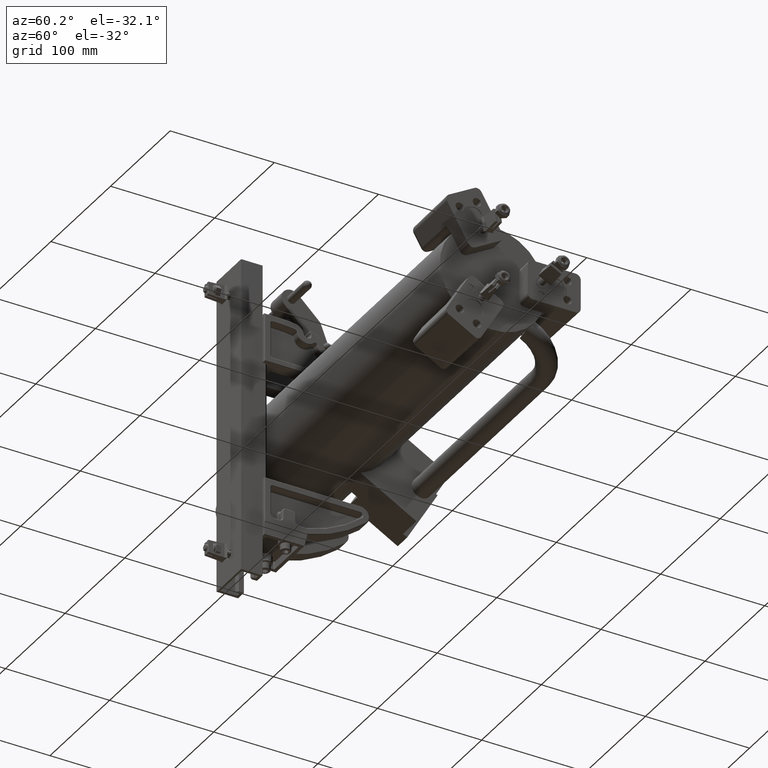
[diagram: clean part render]
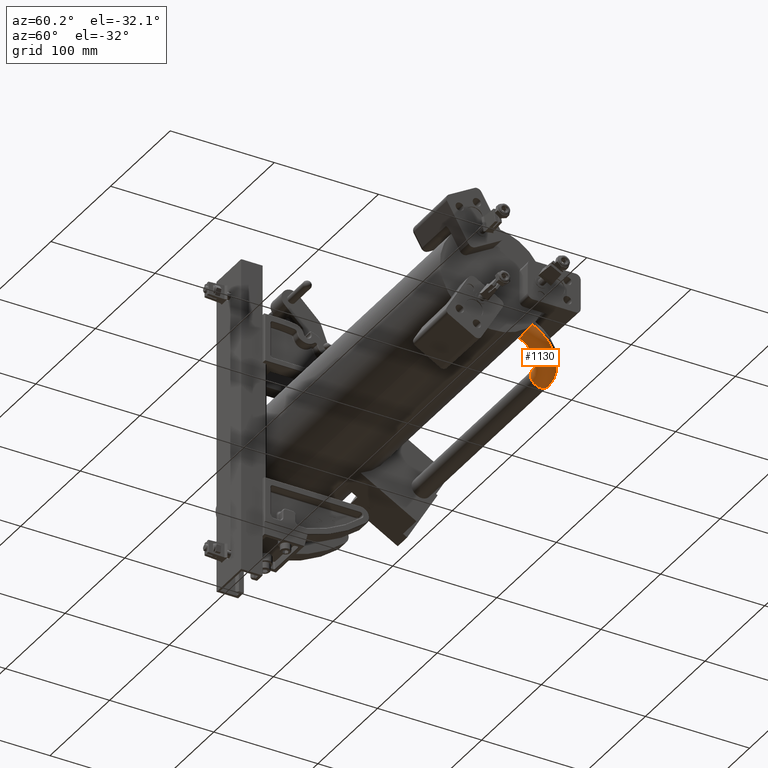
[diagram: same view with one face highlighted and labeled with its STEP entity id]
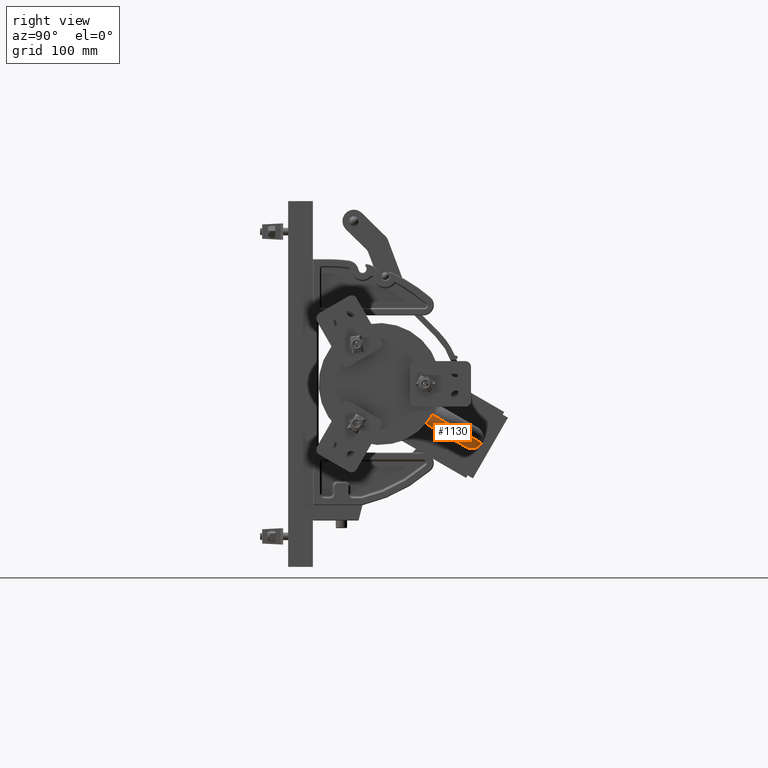
[diagram: same view with one face highlighted and labeled with its STEP entity id]
A machine part, auxiliary view. The second image highlights one B-rep face of the part: STEP entity #1130.
A second angle (right view) of the same face is appended — the face is thin or edge-on in the first view.
In plain terms, the highlighted toroidal blend (fillet) surface has major radius 34.4805 mm and minor (blend) radius 9.525 mm.
Its self-contained STEP definition (entity closure, byte-faithful):
#867 = DIRECTION ( 'NONE',  ( -0.9944751381215468600, 0.1049723756906080400, -5.551115123125777800E-017 ) ) ;
#1130 = ADVANCED_FACE ( 'NONE', ( #19698 ), #9911, .T. ) ;
#2361 = ORIENTED_EDGE ( 'NONE', *, *, #23046, .T. ) ;
#3145 = CARTESIAN_POINT ( 'NONE',  ( 3.500000000000004000, 2.149999999999999900, 1.092739197465705300E-015 ) ) ;
#3650 = CARTESIAN_POINT ( 'NONE',  ( 1.976859125544520500, 0.5807706630533413500, -0.3033611671776146300 ) ) ;
#3828 = CARTESIAN_POINT ( 'NONE',  ( 2.000000000000001300, 0.4233703350167918900, 1.893575060069270300E-015 ) ) ;
#4730 = CIRCLE ( 'NONE', #31177, 1.732500000000000200 ) ;
#5907 = EDGE_LOOP ( 'NONE', ( #2361, #11826, #8232, #29598, #47950 ) ) ;
#7114 = EDGE_CURVE ( 'NONE', #40670, #28609, #45233, .T. ) ;
#7324 = DIRECTION ( 'NONE',  ( 0.0000000000000000000, 0.0000000000000000000, -1.000000000000000000 ) ) ;
#7857 = CARTESIAN_POINT ( 'NONE',  ( 1.983714055282098000, 0.5248550148165260800, -0.2549593525981421200 ) ) ;
#8232 = ORIENTED_EDGE ( 'NONE', *, *, #7114, .F. ) ;
#9218 = CARTESIAN_POINT ( 'NONE',  ( 3.125000000000004000, 2.149999999999999900, 1.092739197465705300E-015 ) ) ;
#9911 = TOROIDAL_SURFACE ( 'NONE', #36905, 1.357499999999999700, 0.3750000000000002800 ) ;
#10402 = CIRCLE ( 'NONE', #49485, 0.3750000000000005600 ) ;
#10696 = VERTEX_POINT ( 'NONE', #9218 ) ;
#10991 = DIRECTION ( 'NONE',  ( 0.0000000000000000000, -5.440752092893936500E-033, -1.000000000000000000 ) ) ;
#11826 = ORIENTED_EDGE ( 'NONE', *, *, #43853, .T. ) ;
#12007 = CARTESIAN_POINT ( 'NONE',  ( 1.987796831126818200, 0.4963595337361464400, -0.2209440534489803500 ) ) ;
#13147 = EDGE_CURVE ( 'NONE', #10696, #49154, #53557, .T. ) ;
#16214 = CARTESIAN_POINT ( 'NONE',  ( 1.991588013561483600, 0.4720240362173502800, -0.1837083925191914400 ) ) ;
#19698 = FACE_OUTER_BOUND ( 'NONE', #5907, .T. ) ;
#20406 = CARTESIAN_POINT ( 'NONE',  ( 1.994844805433452400, 0.4524175500833991800, -0.1441735741196400500 ) ) ;
#23046 = EDGE_CURVE ( 'NONE', #10696, #42763, #28090, .T. ) ;
#23554 = CARTESIAN_POINT ( 'NONE',  ( 2.142500000000002300, 2.149999999999999900, -2.272605443984004900E-016 ) ) ;
#24414 = CARTESIAN_POINT ( 'NONE',  ( 1.976859125544520500, 0.5807706630533413500, -0.3033611671776146300 ) ) ;
#24595 = CARTESIAN_POINT ( 'NONE',  ( 1.997438204146040800, 0.4375288532371836000, -0.1022217074431470800 ) ) ;
#25822 = CARTESIAN_POINT ( 'NONE',  ( 2.000000000000000900, 0.8000000000000001600, -5.463695987328526400E-016 ) ) ;
#27750 = DIRECTION ( 'NONE',  ( 0.0000000000000000000, 1.000000000000000000, 0.0000000000000000000 ) ) ;
#28058 = CARTESIAN_POINT ( 'NONE',  ( 2.142500000000002300, 2.149999999999999900, -2.731847993664263200E-016 ) ) ;
#28090 = CIRCLE ( 'NONE', #52469, 0.3750000000000006700 ) ;
#28609 = VERTEX_POINT ( 'NONE', #39301 ) ;
#28757 = CARTESIAN_POINT ( 'NONE',  ( 2.000000000000000000, 0.4233703350167990500, -0.02966508011446778200 ) ) ;
#29598 = ORIENTED_EDGE ( 'NONE', *, *, #37510, .F. ) ;
#30008 = DIRECTION ( 'NONE',  ( 0.0000000000000000000, 0.0000000000000000000, -1.000000000000000000 ) ) ;
#31177 = AXIS2_PLACEMENT_3D ( 'NONE', #35965, #10991, #40168 ) ;
#32262 = DIRECTION ( 'NONE',  ( -1.000000000000000000, 0.0000000000000000000, 0.0000000000000000000 ) ) ;
#32275 = DIRECTION ( 'NONE',  ( -1.598521853841405800E-032, -1.000000000000000000, -3.659266894335748100E-033 ) ) ;
#32782 = CARTESIAN_POINT ( 'NONE',  ( 1.982324509216929700, 0.5351876198712671700, -0.2655005225003863600 ) ) ;
#35965 = CARTESIAN_POINT ( 'NONE',  ( 2.142500000000002300, 2.149999999999999900, -2.731847993664263200E-016 ) ) ;
#36905 = AXIS2_PLACEMENT_3D ( 'NONE', #28058, #40471, #32262 ) ;
#36974 = CARTESIAN_POINT ( 'NONE',  ( 1.986448050795349500, 0.5054545965020784700, -0.2327012378402112700 ) ) ;
#37510 = EDGE_CURVE ( 'NONE', #49154, #40670, #10402, .T. ) ;
#39301 = CARTESIAN_POINT ( 'NONE',  ( 2.000000000000001300, 0.4233703350167918900, 1.893575060069270300E-015 ) ) ;
#40168 = DIRECTION ( 'NONE',  ( 0.0000000000000000000, 1.000000000000000000, 0.0000000000000000000 ) ) ;
#40471 = DIRECTION ( 'NONE',  ( 0.0000000000000000000, -5.440752092893936500E-033, -1.000000000000000000 ) ) ;
#40670 = VERTEX_POINT ( 'NONE', #24414 ) ;
#41006 = CARTESIAN_POINT ( 'NONE',  ( 1.979556404976112300, 0.5571248383481395300, -0.2854074750390613300 ) ) ;
#41181 = CARTESIAN_POINT ( 'NONE',  ( 1.990373753086030200, 0.4796012782110551400, -0.1963793258429131500 ) ) ;
#42763 = VERTEX_POINT ( 'NONE', #51757 ) ;
#43853 = EDGE_CURVE ( 'NONE', #42763, #28609, #4730, .T. ) ;
#44638 = CARTESIAN_POINT ( 'NONE',  ( 2.039364640883978700, 1.172928176795580800, -2.272605443984005400E-016 ) ) ;
#45233 = B_SPLINE_CURVE_WITH_KNOTS ( 'NONE', 3,
 ( #3650, #53589, #41006, #32782, #7857, #36974, #12007, #41181, #16214, #45388, #20406, #49592, #24595, #53775, #28757, #3828 ),
 .UNSPECIFIED., .F., .F.,
 ( 4, 2, 2, 2, 2, 2, 2, 4 ),
 ( 0.05665030722868242400, 0.05777411461344594800, 0.05889792199820946500, 0.06002172938297298900, 0.06114553676773651400, 0.06226934415250003100, 0.06339315153726354800, 0.06564076630679059600 ),
 .UNSPECIFIED. ) ;
#45388 = CARTESIAN_POINT ( 'NONE',  ( 1.993823484524836200, 0.4584321436357563000, -0.1576055259215315700 ) ) ;
#47950 = ORIENTED_EDGE ( 'NONE', *, *, #13147, .F. ) ;
#49154 = VERTEX_POINT ( 'NONE', #44638 ) ;
#49485 = AXIS2_PLACEMENT_3D ( 'NONE', #25822, #867, #30008 ) ;
#49592 = CARTESIAN_POINT ( 'NONE',  ( 1.996650172666788000, 0.4419768048824701000, -0.1165328504282951300 ) ) ;
#51746 = AXIS2_PLACEMENT_3D ( 'NONE', #23554, #52724, #27750 ) ;
#51757 = CARTESIAN_POINT ( 'NONE',  ( 3.875000000000004400, 2.149999999999999900, 1.138663452433731200E-015 ) ) ;
#52469 = AXIS2_PLACEMENT_3D ( 'NONE', #3145, #32275, #7324 ) ;
#52724 = DIRECTION ( 'NONE',  ( 0.0000000000000000000, -5.440752092893936500E-033, -1.000000000000000000 ) ) ;
#53557 = CIRCLE ( 'NONE', #51746, 0.9824999999999997100 ) ;
#53589 = CARTESIAN_POINT ( 'NONE',  ( 1.978175446694127900, 0.5687620407772913100, -0.2947833340259120000 ) ) ;
#53775 = CARTESIAN_POINT ( 'NONE',  ( 1.999340403174371800, 0.4269069081089912900, -0.05892859792628246000 ) ) ;